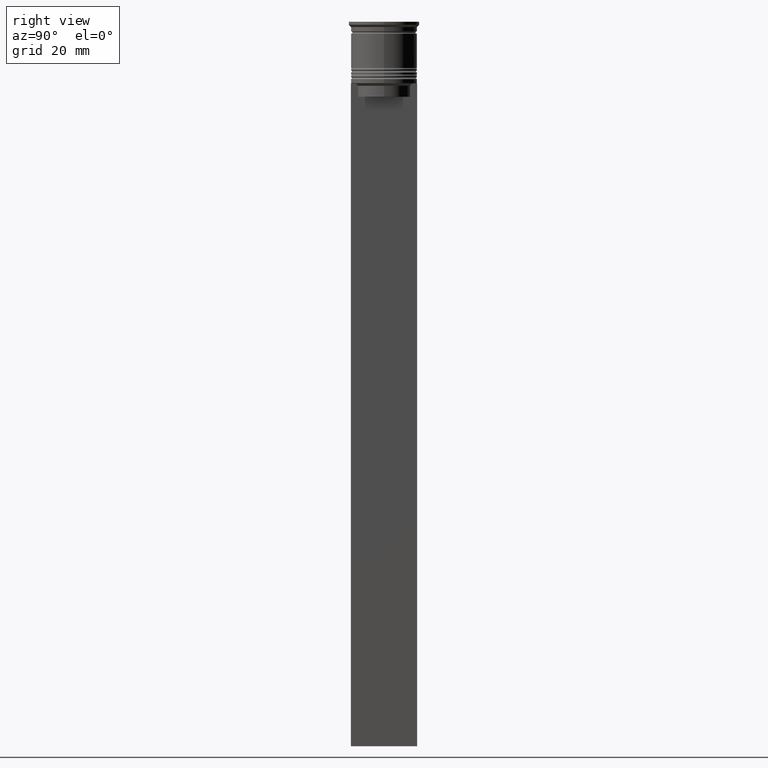
[diagram: clean part render]
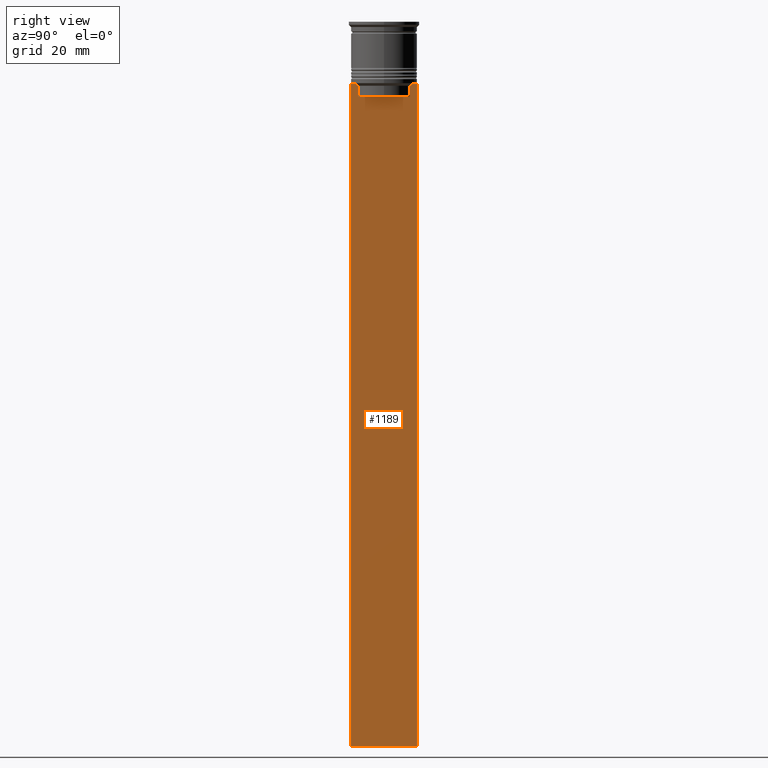
[diagram: same view with one face highlighted and labeled with its STEP entity id]
A machine part, right view. The second image highlights one B-rep face of the part: STEP entity #1189.
In plain terms, the highlighted planar face has unit normal (-1, 0, 0).
Its self-contained STEP definition (entity closure, byte-faithful):
#5 = CARTESIAN_POINT ( 'NONE',  ( 0.5000000000000000000, 6.380438856379706536, -14.00000000000000178 ) ) ;
#22 = CARTESIAN_POINT ( 'NONE',  ( 0.5000000000000000000, 6.213239387491007015, -14.16668843563492430 ) ) ;
#48 = VERTEX_POINT ( 'NONE', #1000 ) ;
#54 = DIRECTION ( 'NONE',  ( 0.000000000000000000, -1.000000000000000000, 0.000000000000000000 ) ) ;
#58 = EDGE_CURVE ( 'NONE', #2360, #944, #1775, .T. ) ;
#71 = LINE ( 'NONE', #2203, #2344 ) ;
#78 = CARTESIAN_POINT ( 'NONE',  ( 0.5000000000000000000, 5.878775382679625849, -14.50000000000000000 ) ) ;
#94 = ORIENTED_EDGE ( 'NONE', *, *, #473, .T. ) ;
#166 = CARTESIAN_POINT ( 'NONE',  ( 0.5000000000000000000, -7.499999999999999112, -14.00000000000000178 ) ) ;
#214 = CARTESIAN_POINT ( 'NONE',  ( 0.5000000000000000000, 7.500000000000002665, 1.033296378372908997 ) ) ;
#231 = DIRECTION ( 'NONE',  ( 0.000000000000000000, 0.000000000000000000, 1.000000000000000000 ) ) ;
#248 = VERTEX_POINT ( 'NONE', #867 ) ;
#363 = VERTEX_POINT ( 'NONE', #2465 ) ;
#388 = CARTESIAN_POINT ( 'NONE',  ( 0.5000000000000000000, -7.499999999999999112, -163.9999999999999716 ) ) ;
#415 = VECTOR ( 'NONE', #2015, 1000.000000000000000 ) ;
#434 = EDGE_CURVE ( 'NONE', #248, #363, #592, .T. ) ;
#445 = VERTEX_POINT ( 'NONE', #5 ) ;
#462 = CARTESIAN_POINT ( 'NONE',  ( 0.5000000000000000000, 6.046020074006152711, -14.33335695351623151 ) ) ;
#473 = EDGE_CURVE ( 'NONE', #363, #48, #823, .T. ) ;
#502 = CARTESIAN_POINT ( 'NONE',  ( 0.5000000000000000000, 7.383088784512886527, -14.00000000000000178 ) ) ;
#529 = LINE ( 'NONE', #1684, #1940 ) ;
#554 = ORIENTED_EDGE ( 'NONE', *, *, #758, .T. ) ;
#560 = CARTESIAN_POINT ( 'NONE',  ( 0.5000000000000000000, 5.878775382679625849, 0.000000000000000000 ) ) ;
#583 = CARTESIAN_POINT ( 'NONE',  ( 0.5000000000000000000, -5.878775382679625849, -14.50000000000000000 ) ) ;
#592 = B_SPLINE_CURVE_WITH_KNOTS ( 'NONE', 3,
 ( #583, #2322, #1947, #2099 ),
 .UNSPECIFIED., .F., .F.,
 ( 4, 4 ),
 ( 0.02765270321082434479, 0.02836198271238431559 ),
 .UNSPECIFIED. ) ;
#613 = DIRECTION ( 'NONE',  ( -1.000000000000000000, 0.000000000000000000, 0.000000000000000000 ) ) ;
#621 = VECTOR ( 'NONE', #1889, 1000.000000000000000 ) ;
#690 = CARTESIAN_POINT ( 'NONE',  ( 0.5000000000000000000, -7.499999999999999112, -14.00000000000000178 ) ) ;
#703 = ORIENTED_EDGE ( 'NONE', *, *, #1295, .T. ) ;
#758 = EDGE_CURVE ( 'NONE', #2243, #445, #1316, .T. ) ;
#807 = ORIENTED_EDGE ( 'NONE', *, *, #1332, .T. ) ;
#823 = LINE ( 'NONE', #1386, #2134 ) ;
#831 = FACE_OUTER_BOUND ( 'NONE', #1778, .T. ) ;
#835 = DIRECTION ( 'NONE',  ( 0.000000000000000000, -1.000000000000000000, 0.000000000000000000 ) ) ;
#848 = CARTESIAN_POINT ( 'NONE',  ( 0.5000000000000000000, 5.878775382679625849, -17.00000000000000000 ) ) ;
#852 = DIRECTION ( 'NONE',  ( 0.000000000000000000, 0.000000000000000000, -1.000000000000000000 ) ) ;
#867 = CARTESIAN_POINT ( 'NONE',  ( 0.5000000000000000000, -5.878775382679625849, -14.50000000000000000 ) ) ;
#902 = ORIENTED_EDGE ( 'NONE', *, *, #1969, .T. ) ;
#930 = DIRECTION ( 'NONE',  ( 0.000000000000000000, 1.000000000000000000, 0.000000000000000000 ) ) ;
#944 = VERTEX_POINT ( 'NONE', #1350 ) ;
#973 = DIRECTION ( 'NONE',  ( 0.000000000000000000, -1.000000000000000000, 0.000000000000000000 ) ) ;
#1000 = CARTESIAN_POINT ( 'NONE',  ( 0.5000000000000000000, -7.383088784512886527, -14.00000000000000178 ) ) ;
#1019 = LINE ( 'NONE', #2358, #1071 ) ;
#1031 = VERTEX_POINT ( 'NONE', #690 ) ;
#1049 = EDGE_CURVE ( 'NONE', #2013, #2436, #1019, .T. ) ;
#1059 = CARTESIAN_POINT ( 'NONE',  ( 0.5000000000000000000, 5.878775382679625849, -14.50000000000000000 ) ) ;
#1071 = VECTOR ( 'NONE', #54, 1000.000000000000000 ) ;
#1119 = B_SPLINE_CURVE_WITH_KNOTS ( 'NONE', 3,
 ( #1604, #22, #462, #78 ),
 .UNSPECIFIED., .F., .F.,
 ( 4, 4 ),
 ( 0.01087727669788152163, 0.01158556069794289788 ),
 .UNSPECIFIED. ) ;
#1121 = LINE ( 'NONE', #560, #621 ) ;
#1136 = EDGE_CURVE ( 'NONE', #445, #2391, #1119, .T. ) ;
#1145 = AXIS2_PLACEMENT_3D ( 'NONE', #1566, #613, #231 ) ;
#1189 = ADVANCED_FACE ( 'NONE', ( #831 ), #1191, .F. ) ;
#1191 = PLANE ( 'NONE',  #1145 ) ;
#1216 = ORIENTED_EDGE ( 'NONE', *, *, #58, .F. ) ;
#1229 = EDGE_CURVE ( 'NONE', #2436, #248, #2382, .T. ) ;
#1240 = CARTESIAN_POINT ( 'NONE',  ( 0.5000000000000000000, -7.499999999999999112, -14.00000000000000178 ) ) ;
#1291 = ORIENTED_EDGE ( 'NONE', *, *, #1049, .T. ) ;
#1295 = EDGE_CURVE ( 'NONE', #2391, #2013, #1121, .T. ) ;
#1316 = LINE ( 'NONE', #166, #2138 ) ;
#1319 = ORIENTED_EDGE ( 'NONE', *, *, #2006, .T. ) ;
#1332 = EDGE_CURVE ( 'NONE', #1883, #944, #529, .T. ) ;
#1350 = CARTESIAN_POINT ( 'NONE',  ( 0.5000000000000000000, 7.500000000000002665, -163.9999999999999716 ) ) ;
#1377 = CARTESIAN_POINT ( 'NONE',  ( 0.5000000000000000000, -5.878775382679625849, 0.000000000000000000 ) ) ;
#1381 = VECTOR ( 'NONE', #2143, 1000.000000000000000 ) ;
#1386 = CARTESIAN_POINT ( 'NONE',  ( 0.5000000000000000000, -7.499999999999999112, -14.00000000000000178 ) ) ;
#1515 = VECTOR ( 'NONE', #2389, 1000.000000000000000 ) ;
#1566 = CARTESIAN_POINT ( 'NONE',  ( 0.5000000000000000000, -7.499999999999999112, 1.033296378372908997 ) ) ;
#1604 = CARTESIAN_POINT ( 'NONE',  ( 0.5000000000000000000, 6.380438856379706536, -14.00000000000000178 ) ) ;
#1607 = EDGE_CURVE ( 'NONE', #1031, #1883, #2393, .T. ) ;
#1684 = CARTESIAN_POINT ( 'NONE',  ( 0.5000000000000000000, -7.499999999999999112, -163.9999999999999716 ) ) ;
#1711 = ORIENTED_EDGE ( 'NONE', *, *, #434, .T. ) ;
#1723 = ORIENTED_EDGE ( 'NONE', *, *, #1136, .T. ) ;
#1775 = LINE ( 'NONE', #214, #2093 ) ;
#1778 = EDGE_LOOP ( 'NONE', ( #554, #1723, #703, #1291, #2251, #1711, #94, #902, #1914, #807, #1216, #1319 ) ) ;
#1791 = CARTESIAN_POINT ( 'NONE',  ( 0.5000000000000000000, -7.499999999999999112, 1.033296378372908997 ) ) ;
#1810 = CARTESIAN_POINT ( 'NONE',  ( 0.5000000000000000000, 7.500000000000002665, -14.00000000000000178 ) ) ;
#1883 = VERTEX_POINT ( 'NONE', #388 ) ;
#1889 = DIRECTION ( 'NONE',  ( 0.000000000000000000, 0.000000000000000000, -1.000000000000000000 ) ) ;
#1897 = DIRECTION ( 'NONE',  ( 0.000000000000000000, -1.000000000000000000, 0.000000000000000000 ) ) ;
#1914 = ORIENTED_EDGE ( 'NONE', *, *, #1607, .T. ) ;
#1940 = VECTOR ( 'NONE', #930, 1000.000000000000000 ) ;
#1947 = CARTESIAN_POINT ( 'NONE',  ( 0.5000000000000000000, -6.213239311785844876, -14.16668851110870087 ) ) ;
#1969 = EDGE_CURVE ( 'NONE', #48, #1031, #2187, .T. ) ;
#2006 = EDGE_CURVE ( 'NONE', #2360, #2243, #71, .T. ) ;
#2013 = VERTEX_POINT ( 'NONE', #848 ) ;
#2015 = DIRECTION ( 'NONE',  ( 0.000000000000000000, 0.000000000000000000, -1.000000000000000000 ) ) ;
#2093 = VECTOR ( 'NONE', #852, 1000.000000000000000 ) ;
#2099 = CARTESIAN_POINT ( 'NONE',  ( 0.5000000000000000000, -6.380438856379706536, -14.00000000000000178 ) ) ;
#2134 = VECTOR ( 'NONE', #973, 1000.000000000000000 ) ;
#2138 = VECTOR ( 'NONE', #1897, 1000.000000000000000 ) ;
#2143 = DIRECTION ( 'NONE',  ( -0.000000000000000000, -0.000000000000000000, 1.000000000000000000 ) ) ;
#2187 = LINE ( 'NONE', #1240, #1515 ) ;
#2203 = CARTESIAN_POINT ( 'NONE',  ( 0.5000000000000000000, -7.499999999999999112, -14.00000000000000178 ) ) ;
#2243 = VERTEX_POINT ( 'NONE', #502 ) ;
#2251 = ORIENTED_EDGE ( 'NONE', *, *, #1229, .T. ) ;
#2322 = CARTESIAN_POINT ( 'NONE',  ( 0.5000000000000000000, -6.046019991840948293, -14.33335703538585726 ) ) ;
#2344 = VECTOR ( 'NONE', #835, 1000.000000000000000 ) ;
#2358 = CARTESIAN_POINT ( 'NONE',  ( 0.5000000000000000000, 5.899999999999998579, -17.00000000000000000 ) ) ;
#2360 = VERTEX_POINT ( 'NONE', #1810 ) ;
#2382 = LINE ( 'NONE', #1377, #1381 ) ;
#2389 = DIRECTION ( 'NONE',  ( 0.000000000000000000, -1.000000000000000000, 0.000000000000000000 ) ) ;
#2391 = VERTEX_POINT ( 'NONE', #1059 ) ;
#2393 = LINE ( 'NONE', #1791, #415 ) ;
#2412 = CARTESIAN_POINT ( 'NONE',  ( 0.5000000000000000000, -5.878775382679625849, -17.00000000000000000 ) ) ;
#2436 = VERTEX_POINT ( 'NONE', #2412 ) ;
#2465 = CARTESIAN_POINT ( 'NONE',  ( 0.5000000000000000000, -6.380438856379706536, -14.00000000000000178 ) ) ;